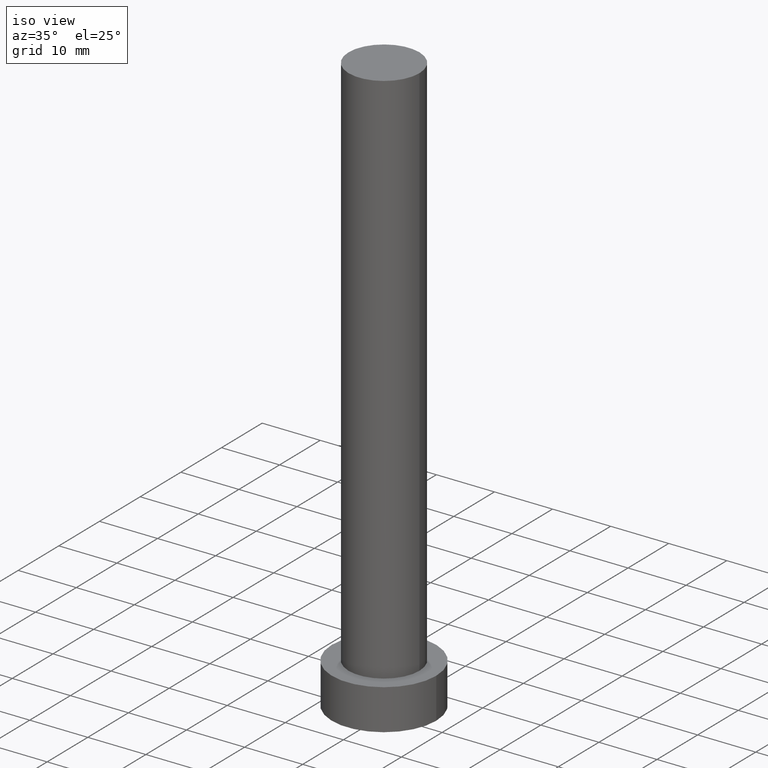
[diagram: clean part render]
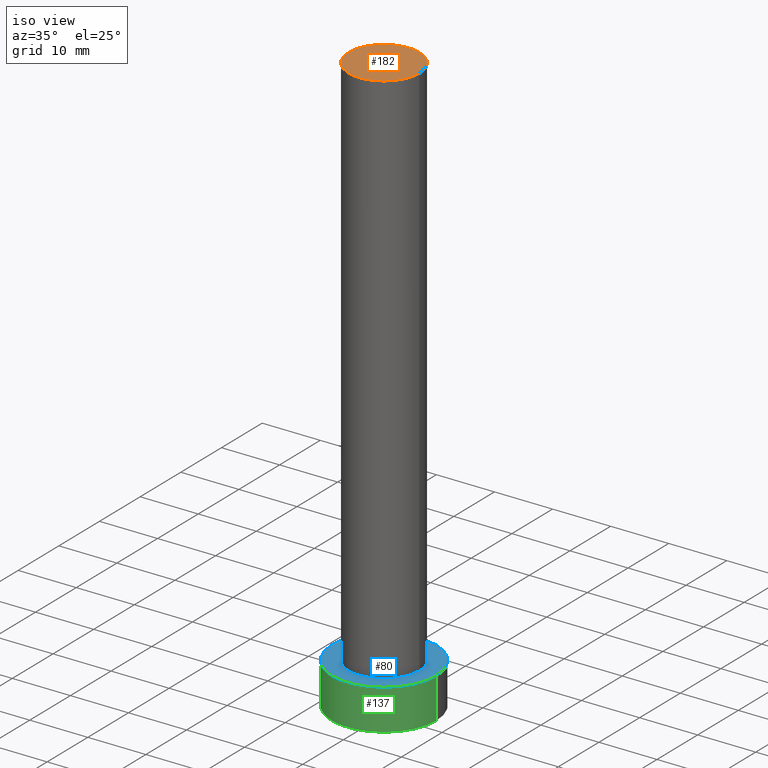
[diagram: same view with three faces highlighted in distinct colors, each labeled with its STEP entity id]
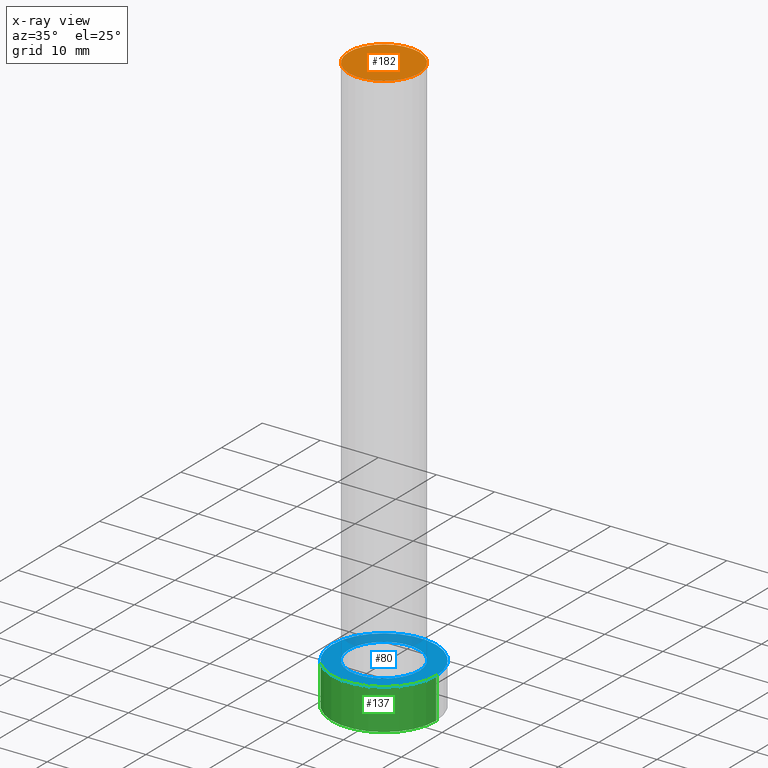
[diagram: x-ray of the same camera — body ghosted, the three highlighted faces saturated]
A machine part, iso view with three faces highlighted in distinct colors.
The next image is the same camera in x-ray (body ghosted, the three faces saturated) — at least one of them is partly hidden behind the body in this view.
Their STEP definitions:

[orange] entity #182 — the highlighted planar face has unit normal (0, 0, 1).
#1 = CARTESIAN_POINT ( 'NONE',  ( 6.099999999999999645, 7.470345474798852320E-16, 100.0000000000000000 ) ) ;
#4 = AXIS2_PLACEMENT_3D ( 'NONE', #196, #84, #217 ) ;
#13 = EDGE_CURVE ( 'NONE', #16, #140, #89, .T. ) ;
#16 = VERTEX_POINT ( 'NONE', #1 ) ;
#18 = EDGE_LOOP ( 'NONE', ( #75, #176 ) ) ;
#25 = DIRECTION ( 'NONE',  ( 0.000000000000000000, 0.000000000000000000, 1.000000000000000000 ) ) ;
#60 = DIRECTION ( 'NONE',  ( 0.000000000000000000, 0.000000000000000000, 1.000000000000000000 ) ) ;
#62 = CARTESIAN_POINT ( 'NONE',  ( 0.000000000000000000, 0.000000000000000000, 100.0000000000000000 ) ) ;
#68 = CARTESIAN_POINT ( 'NONE',  ( 0.000000000000000000, 0.000000000000000000, 100.0000000000000000 ) ) ;
#75 = ORIENTED_EDGE ( 'NONE', *, *, #103, .T. ) ;
#84 = DIRECTION ( 'NONE',  ( 0.000000000000000000, 0.000000000000000000, 1.000000000000000000 ) ) ;
#89 = CIRCLE ( 'NONE', #4, 6.099999999999999645 ) ;
#103 = EDGE_CURVE ( 'NONE', #140, #16, #183, .T. ) ;
#111 = PLANE ( 'NONE',  #124 ) ;
#124 = AXIS2_PLACEMENT_3D ( 'NONE', #68, #25, #225 ) ;
#140 = VERTEX_POINT ( 'NONE', #221 ) ;
#162 = DIRECTION ( 'NONE',  ( 1.000000000000000000, 0.000000000000000000, 0.000000000000000000 ) ) ;
#176 = ORIENTED_EDGE ( 'NONE', *, *, #13, .T. ) ;
#182 = ADVANCED_FACE ( 'NONE', ( #245 ), #111, .T. ) ;
#183 = CIRCLE ( 'NONE', #235, 6.099999999999999645 ) ;
#196 = CARTESIAN_POINT ( 'NONE',  ( 0.000000000000000000, 0.000000000000000000, 100.0000000000000000 ) ) ;
#217 = DIRECTION ( 'NONE',  ( 1.000000000000000000, 0.000000000000000000, 0.000000000000000000 ) ) ;
#221 = CARTESIAN_POINT ( 'NONE',  ( -6.099999999999999645, 0.000000000000000000, 100.0000000000000000 ) ) ;
#225 = DIRECTION ( 'NONE',  ( 1.000000000000000000, 0.000000000000000000, -0.000000000000000000 ) ) ;
#235 = AXIS2_PLACEMENT_3D ( 'NONE', #62, #60, #162 ) ;
#245 = FACE_OUTER_BOUND ( 'NONE', #18, .T. ) ;

[blue] entity #80 — the highlighted planar face has unit normal (0, 0, 1).
#19 = DIRECTION ( 'NONE',  ( 0.000000000000000000, 0.000000000000000000, 1.000000000000000000 ) ) ;
#21 = DIRECTION ( 'NONE',  ( 1.000000000000000000, 0.000000000000000000, 0.000000000000000000 ) ) ;
#30 = DIRECTION ( 'NONE',  ( 1.000000000000000000, 0.000000000000000000, 0.000000000000000000 ) ) ;
#34 = CIRCLE ( 'NONE', #171, 6.099999999999999645 ) ;
#35 = EDGE_CURVE ( 'NONE', #233, #230, #47, .T. ) ;
#46 = CARTESIAN_POINT ( 'NONE',  ( -6.099999999999999645, 0.000000000000000000, 7.000000000000000000 ) ) ;
#47 = CIRCLE ( 'NONE', #226, 9.000000000000000000 ) ;
#57 = AXIS2_PLACEMENT_3D ( 'NONE', #123, #253, #21 ) ;
#59 = DIRECTION ( 'NONE',  ( 1.000000000000000000, 0.000000000000000000, -0.000000000000000000 ) ) ;
#79 = DIRECTION ( 'NONE',  ( 1.000000000000000000, 0.000000000000000000, 0.000000000000000000 ) ) ;
#80 = ADVANCED_FACE ( 'NONE', ( #142, #238 ), #199, .T. ) ;
#85 = DIRECTION ( 'NONE',  ( 0.000000000000000000, 0.000000000000000000, 1.000000000000000000 ) ) ;
#92 = EDGE_CURVE ( 'NONE', #160, #248, #151, .T. ) ;
#98 = ORIENTED_EDGE ( 'NONE', *, *, #168, .F. ) ;
#100 = CIRCLE ( 'NONE', #209, 9.000000000000000000 ) ;
#117 = EDGE_LOOP ( 'NONE', ( #98, #216 ) ) ;
#123 = CARTESIAN_POINT ( 'NONE',  ( 0.000000000000000000, 0.000000000000000000, 7.000000000000000000 ) ) ;
#128 = CARTESIAN_POINT ( 'NONE',  ( -9.000000000000000000, 0.000000000000000000, 7.000000000000000000 ) ) ;
#130 = DIRECTION ( 'NONE',  ( 1.000000000000000000, 0.000000000000000000, 0.000000000000000000 ) ) ;
#134 = ORIENTED_EDGE ( 'NONE', *, *, #156, .T. ) ;
#142 = FACE_BOUND ( 'NONE', #117, .T. ) ;
#150 = DIRECTION ( 'NONE',  ( 0.000000000000000000, 0.000000000000000000, 1.000000000000000000 ) ) ;
#151 = CIRCLE ( 'NONE', #57, 6.099999999999999645 ) ;
#156 = EDGE_CURVE ( 'NONE', #230, #233, #100, .T. ) ;
#160 = VERTEX_POINT ( 'NONE', #167 ) ;
#167 = CARTESIAN_POINT ( 'NONE',  ( 6.099999999999999645, 7.470345474798852320E-16, 7.000000000000000000 ) ) ;
#168 = EDGE_CURVE ( 'NONE', #248, #160, #34, .T. ) ;
#171 = AXIS2_PLACEMENT_3D ( 'NONE', #205, #150, #30 ) ;
#199 = PLANE ( 'NONE',  #218 ) ;
#200 = CARTESIAN_POINT ( 'NONE',  ( 0.000000000000000000, 0.000000000000000000, 7.000000000000000000 ) ) ;
#204 = DIRECTION ( 'NONE',  ( 0.000000000000000000, 0.000000000000000000, 1.000000000000000000 ) ) ;
#205 = CARTESIAN_POINT ( 'NONE',  ( 0.000000000000000000, 0.000000000000000000, 7.000000000000000000 ) ) ;
#209 = AXIS2_PLACEMENT_3D ( 'NONE', #200, #204, #130 ) ;
#216 = ORIENTED_EDGE ( 'NONE', *, *, #92, .F. ) ;
#218 = AXIS2_PLACEMENT_3D ( 'NONE', #222, #85, #59 ) ;
#222 = CARTESIAN_POINT ( 'NONE',  ( 0.000000000000000000, 0.000000000000000000, 7.000000000000000000 ) ) ;
#226 = AXIS2_PLACEMENT_3D ( 'NONE', #237, #19, #79 ) ;
#229 = ORIENTED_EDGE ( 'NONE', *, *, #35, .T. ) ;
#230 = VERTEX_POINT ( 'NONE', #246 ) ;
#233 = VERTEX_POINT ( 'NONE', #128 ) ;
#237 = CARTESIAN_POINT ( 'NONE',  ( 0.000000000000000000, 0.000000000000000000, 7.000000000000000000 ) ) ;
#238 = FACE_OUTER_BOUND ( 'NONE', #251, .T. ) ;
#246 = CARTESIAN_POINT ( 'NONE',  ( 9.000000000000000000, 1.102182119232617714E-15, 7.000000000000000000 ) ) ;
#248 = VERTEX_POINT ( 'NONE', #46 ) ;
#251 = EDGE_LOOP ( 'NONE', ( #229, #134 ) ) ;
#253 = DIRECTION ( 'NONE',  ( 0.000000000000000000, 0.000000000000000000, 1.000000000000000000 ) ) ;

[green] entity #137 — the highlighted cylindrical surface (partial cylindrical patch) has radius 9 mm, axis along (-0, -0, -1).
#3 = EDGE_CURVE ( 'NONE', #233, #41, #45, .T. ) ;
#12 = EDGE_LOOP ( 'NONE', ( #56, #39, #161, #115 ) ) ;
#19 = DIRECTION ( 'NONE',  ( 0.000000000000000000, 0.000000000000000000, 1.000000000000000000 ) ) ;
#22 = CARTESIAN_POINT ( 'NONE',  ( 0.000000000000000000, 0.000000000000000000, 7.000000000000000000 ) ) ;
#24 = AXIS2_PLACEMENT_3D ( 'NONE', #22, #144, #181 ) ;
#35 = EDGE_CURVE ( 'NONE', #233, #230, #47, .T. ) ;
#39 = ORIENTED_EDGE ( 'NONE', *, *, #35, .F. ) ;
#40 = VECTOR ( 'NONE', #165, 1000.000000000000000 ) ;
#41 = VERTEX_POINT ( 'NONE', #105 ) ;
#45 = LINE ( 'NONE', #184, #190 ) ;
#47 = CIRCLE ( 'NONE', #226, 9.000000000000000000 ) ;
#56 = ORIENTED_EDGE ( 'NONE', *, *, #224, .F. ) ;
#58 = CIRCLE ( 'NONE', #179, 9.000000000000000000 ) ;
#66 = CARTESIAN_POINT ( 'NONE',  ( 9.000000000000000000, 1.102182119232617714E-15, 7.000000000000000000 ) ) ;
#79 = DIRECTION ( 'NONE',  ( 1.000000000000000000, 0.000000000000000000, 0.000000000000000000 ) ) ;
#82 = DIRECTION ( 'NONE',  ( -0.000000000000000000, -0.000000000000000000, -1.000000000000000000 ) ) ;
#86 = DIRECTION ( 'NONE',  ( 1.000000000000000000, 0.000000000000000000, 0.000000000000000000 ) ) ;
#105 = CARTESIAN_POINT ( 'NONE',  ( -9.000000000000000000, 0.000000000000000000, 0.000000000000000000 ) ) ;
#109 = CARTESIAN_POINT ( 'NONE',  ( 0.000000000000000000, 0.000000000000000000, 0.000000000000000000 ) ) ;
#115 = ORIENTED_EDGE ( 'NONE', *, *, #173, .T. ) ;
#128 = CARTESIAN_POINT ( 'NONE',  ( -9.000000000000000000, 0.000000000000000000, 7.000000000000000000 ) ) ;
#137 = ADVANCED_FACE ( 'NONE', ( #164 ), #241, .T. ) ;
#144 = DIRECTION ( 'NONE',  ( -0.000000000000000000, -0.000000000000000000, -1.000000000000000000 ) ) ;
#147 = CARTESIAN_POINT ( 'NONE',  ( 9.000000000000000000, 1.102182119232617714E-15, 0.000000000000000000 ) ) ;
#161 = ORIENTED_EDGE ( 'NONE', *, *, #3, .T. ) ;
#164 = FACE_OUTER_BOUND ( 'NONE', #12, .T. ) ;
#165 = DIRECTION ( 'NONE',  ( -0.000000000000000000, -0.000000000000000000, -1.000000000000000000 ) ) ;
#166 = DIRECTION ( 'NONE',  ( 0.000000000000000000, 0.000000000000000000, 1.000000000000000000 ) ) ;
#173 = EDGE_CURVE ( 'NONE', #41, #234, #58, .T. ) ;
#179 = AXIS2_PLACEMENT_3D ( 'NONE', #109, #166, #86 ) ;
#181 = DIRECTION ( 'NONE',  ( -1.000000000000000000, 0.000000000000000000, 0.000000000000000000 ) ) ;
#184 = CARTESIAN_POINT ( 'NONE',  ( -9.000000000000000000, 0.000000000000000000, 7.000000000000000000 ) ) ;
#190 = VECTOR ( 'NONE', #82, 1000.000000000000000 ) ;
#224 = EDGE_CURVE ( 'NONE', #230, #234, #242, .T. ) ;
#226 = AXIS2_PLACEMENT_3D ( 'NONE', #237, #19, #79 ) ;
#230 = VERTEX_POINT ( 'NONE', #246 ) ;
#233 = VERTEX_POINT ( 'NONE', #128 ) ;
#234 = VERTEX_POINT ( 'NONE', #147 ) ;
#237 = CARTESIAN_POINT ( 'NONE',  ( 0.000000000000000000, 0.000000000000000000, 7.000000000000000000 ) ) ;
#241 = CYLINDRICAL_SURFACE ( 'NONE', #24, 9.000000000000000000 ) ;
#242 = LINE ( 'NONE', #66, #40 ) ;
#246 = CARTESIAN_POINT ( 'NONE',  ( 9.000000000000000000, 1.102182119232617714E-15, 7.000000000000000000 ) ) ;